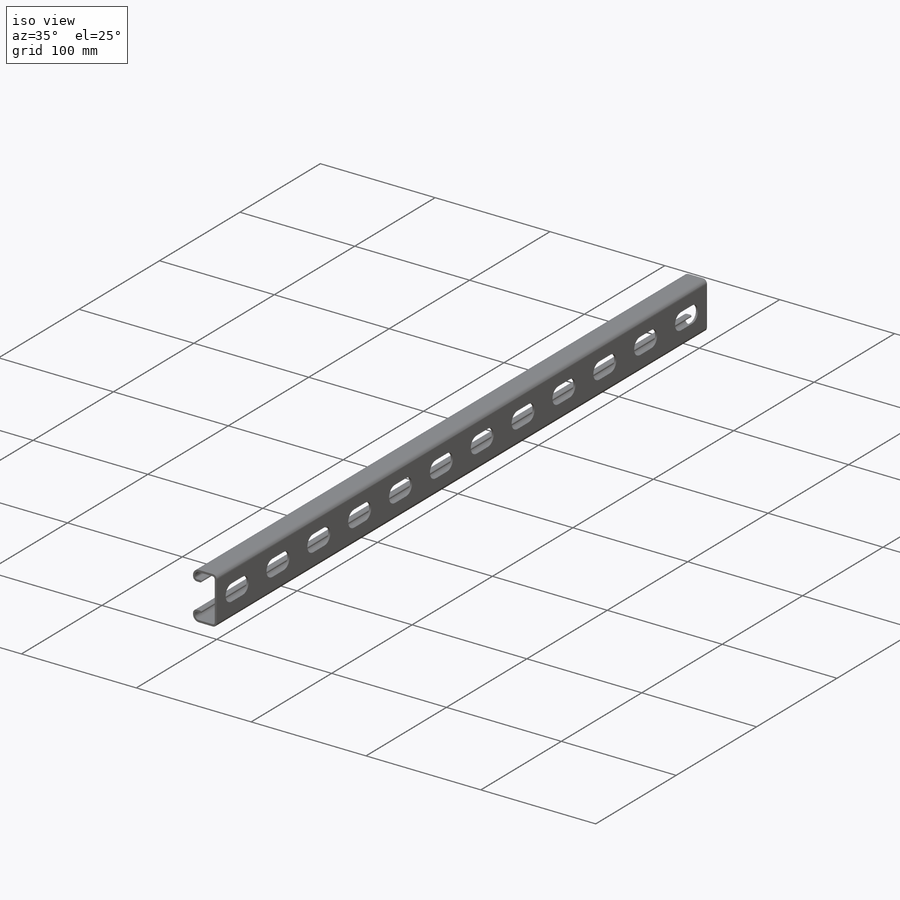
[diagram: iso view]
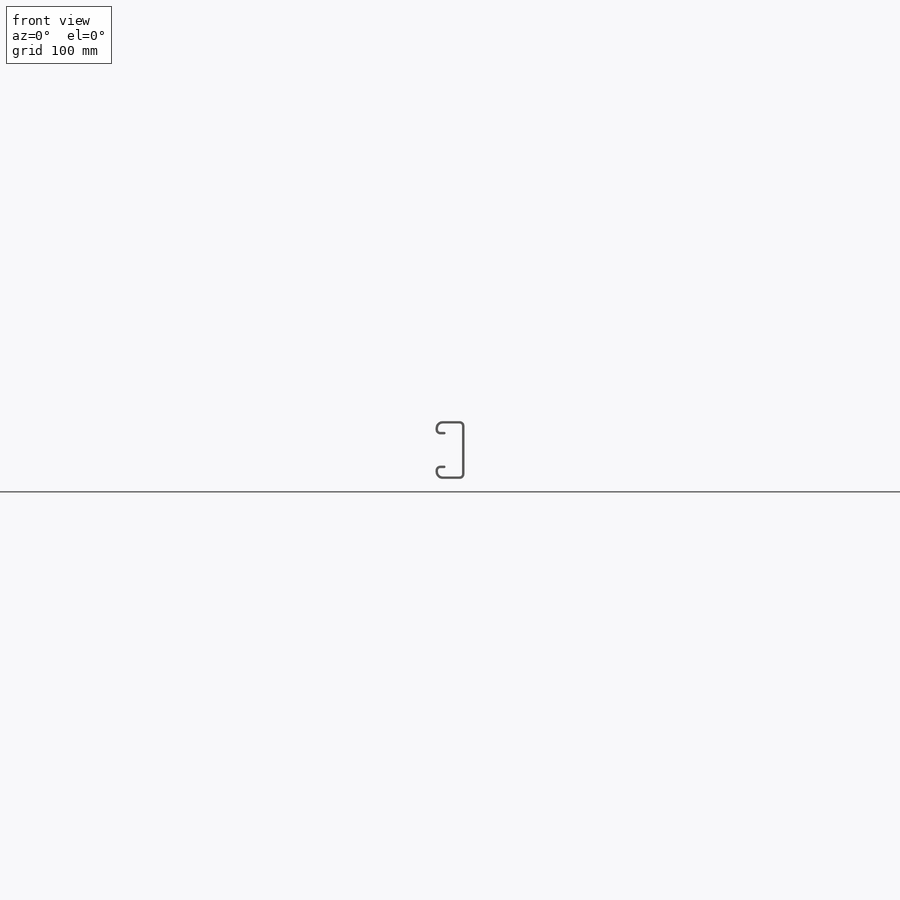
[diagram: front view]
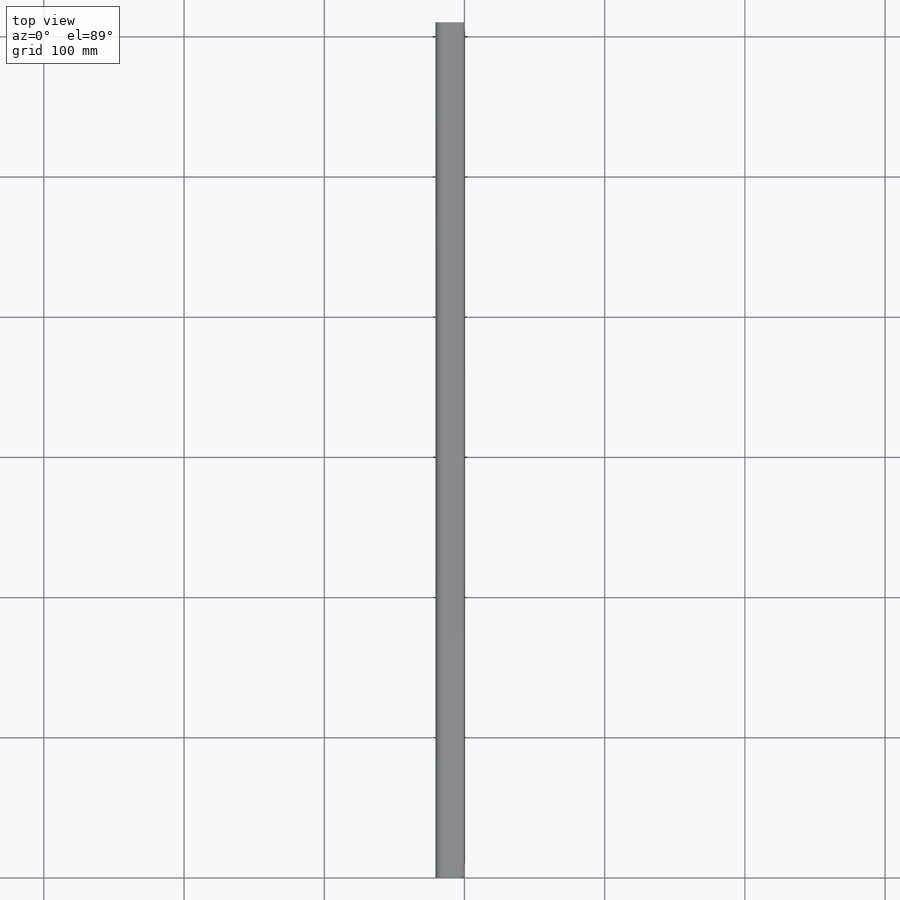
[diagram: top view]
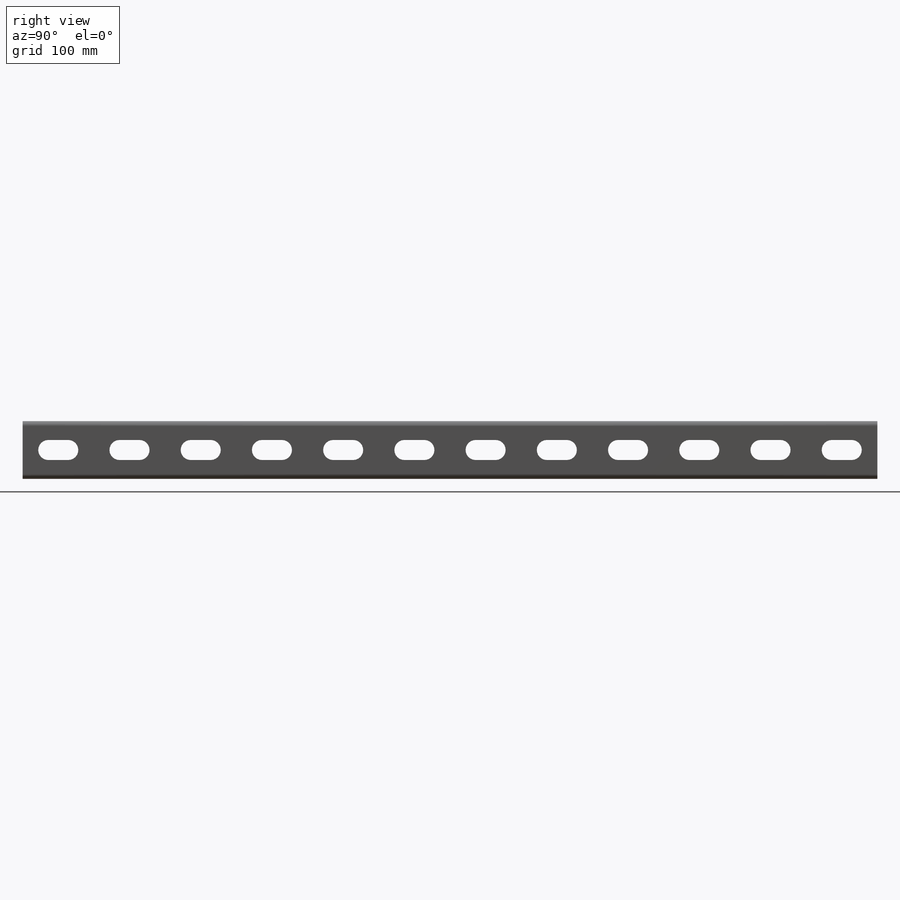
[diagram: right view]
SOLIDWORKS PART (.sldprt)
format: sldprt  version: not decoded by parser v0  size: 300,544 bytes
history: native  units: mm
features: sketch x3, material x1, extrude x1, cut_extrude x1, pattern_linear x1 (+15 scaffold rows collapsed)
feature tree (22):
  scaffold x15  (default folders/planes/origin — collapsed)
  material  "Material <not specified>"
  sketch  "Sketch1"  dims[c1.A=25.4mm c1.D1=~3.46075mm c1.D2=~5.04825mm c1.D3=~3.46075mm c1.B=55.5625mm c1.C=34.925mm c1.Thread OD=7.9375mm c1.Plate Lg.=52.3875mm c1.Plate Ht.=1.5875mm c1.Ht.=20.6375mm c1.Wd.=41.275mm c1.Thk.=2.667mm c1.D4=9.525mm c1.D5=7.1374mm c2.Thk.=1.778mm]
  extrude  "Boss-Extrude1"  Depth=609.6mm Lg.=609.6mm
  sketch  "Sketch3"  dims[D1=101.6mm D2=101.6mm D3=609.6mm]
  sketch  "Sketch2"  dims[Slot Lg.=28.575mm Slot Wd.=14.2875mm D3=25.5905mm Slot Ctr.=50.8mm Hole to End=11.1125mm D2=25.4mm]
  cut_extrude  "Cut-Extrude1"  [1 undecoded]
  pattern_linear  "LPattern1"  Count1=12 Count2=1 Spacing1=50.8mm Spacing2=50mm Hole Count=12
decode coverage: 5 of 6 modeling features carry decoded parameters
note: ~ marks probable driven/reference dimensions
note: 1 parameter value undecoded
note: suppression state not decoded; provenance and decode notes live in map.json
